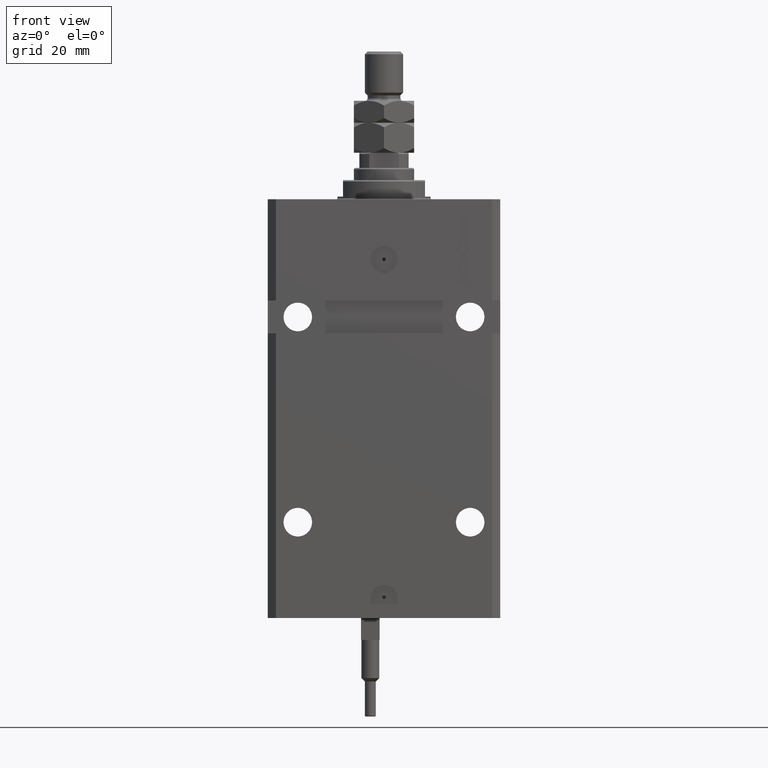
[diagram: clean part render]
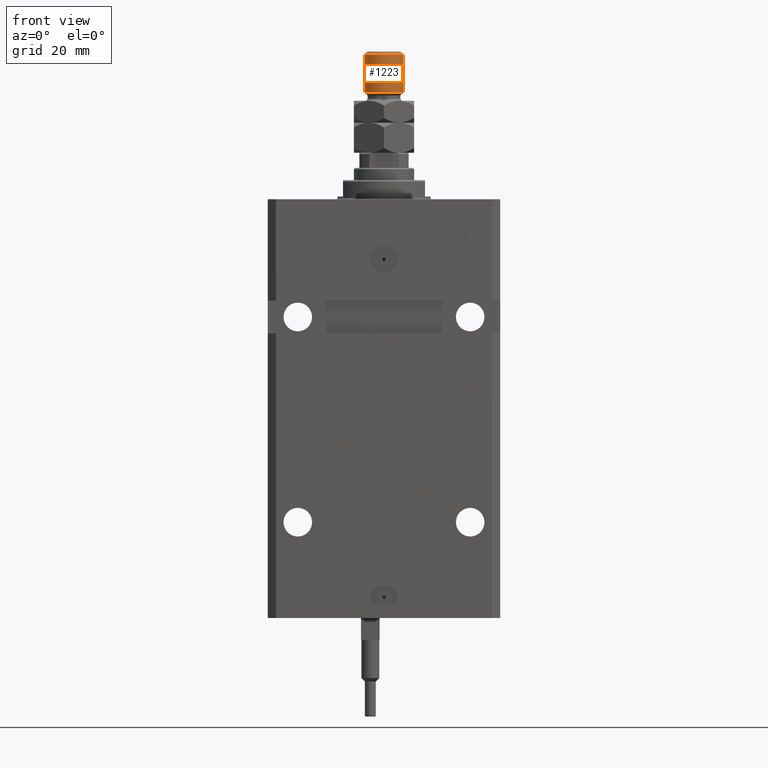
[diagram: same view with one face highlighted and labeled with its STEP entity id]
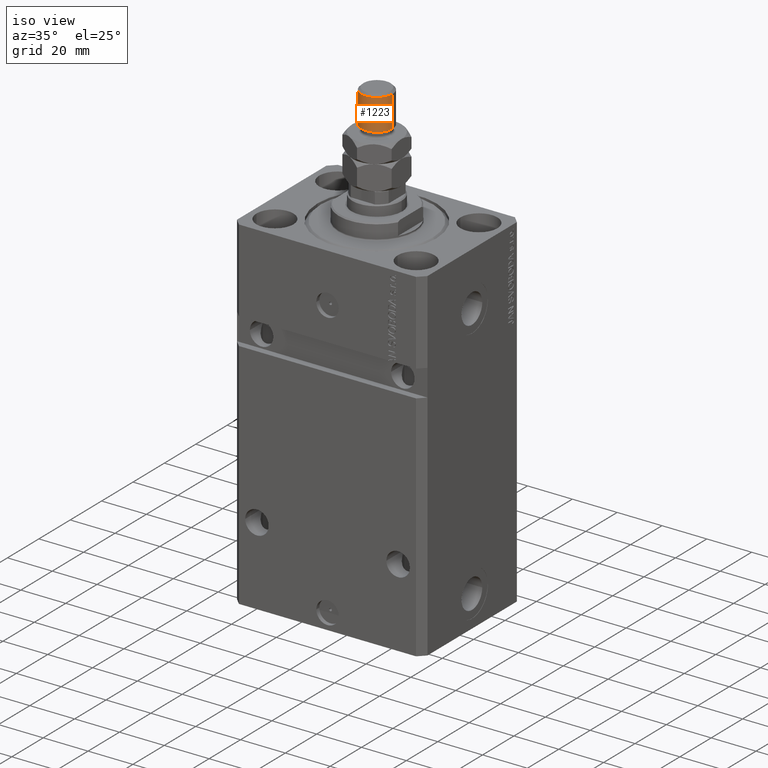
[diagram: same view with one face highlighted and labeled with its STEP entity id]
A machine part, front view. The second image highlights one B-rep face of the part: STEP entity #1223.
A second angle (iso view) of the same face is appended — the face is thin or edge-on in the first view.
In plain terms, the highlighted cylindrical surface (edge-blend (fillet) strip) has radius 7 mm, axis along (-0, -0, -1).
Its self-contained STEP definition (entity closure, byte-faithful):
#971 = CARTESIAN_POINT ( 'NONE',  ( -7.000000000000000000, 0.000000000000000000, 37.00000000000000000 ) ) ;
#1223 = ADVANCED_FACE ( 'NONE', ( #45105 ), #17760, .T. ) ;
#3260 = EDGE_CURVE ( 'NONE', #18743, #15442, #7896, .T. ) ;
#4356 = ORIENTED_EDGE ( 'NONE', *, *, #15148, .F. ) ;
#6348 = VERTEX_POINT ( 'NONE', #48163 ) ;
#7896 = CIRCLE ( 'NONE', #22736, 7.000000000000000000 ) ;
#8665 = VECTOR ( 'NONE', #40438, 1000.000000000000000 ) ;
#10716 = VECTOR ( 'NONE', #41335, 1000.000000000000000 ) ;
#13467 = ORIENTED_EDGE ( 'NONE', *, *, #30252, .T. ) ;
#14670 = DIRECTION ( 'NONE',  ( 1.000000000000000000, 0.000000000000000000, 0.000000000000000000 ) ) ;
#15148 = EDGE_CURVE ( 'NONE', #18743, #27756, #41086, .T. ) ;
#15442 = VERTEX_POINT ( 'NONE', #36645 ) ;
#15880 = EDGE_LOOP ( 'NONE', ( #4356, #33202, #13467, #32933 ) ) ;
#16520 = CARTESIAN_POINT ( 'NONE',  ( 7.000000000000000000, 8.572527594031473190E-16, 35.99999999999999289 ) ) ;
#17760 = CYLINDRICAL_SURFACE ( 'NONE', #18516, 7.000000000000000000 ) ;
#18516 = AXIS2_PLACEMENT_3D ( 'NONE', #25495, #21621, #37355 ) ;
#18743 = VERTEX_POINT ( 'NONE', #16520 ) ;
#18802 = CARTESIAN_POINT ( 'NONE',  ( 0.000000000000000000, 0.000000000000000000, 35.99999999999999289 ) ) ;
#19050 = DIRECTION ( 'NONE',  ( 0.000000000000000000, 0.000000000000000000, -1.000000000000000000 ) ) ;
#19117 = CIRCLE ( 'NONE', #50400, 7.000000000000000000 ) ;
#20295 = CARTESIAN_POINT ( 'NONE',  ( 7.000000000000000000, 8.572527594031473190E-16, 37.00000000000000000 ) ) ;
#20602 = LINE ( 'NONE', #971, #8665 ) ;
#21621 = DIRECTION ( 'NONE',  ( -0.000000000000000000, -0.000000000000000000, -1.000000000000000000 ) ) ;
#22736 = AXIS2_PLACEMENT_3D ( 'NONE', #18802, #19050, #14670 ) ;
#25495 = CARTESIAN_POINT ( 'NONE',  ( 0.000000000000000000, 0.000000000000000000, 37.00000000000000000 ) ) ;
#27756 = VERTEX_POINT ( 'NONE', #38981 ) ;
#28790 = DIRECTION ( 'NONE',  ( -0.000000000000000000, -0.000000000000000000, 1.000000000000000000 ) ) ;
#30252 = EDGE_CURVE ( 'NONE', #15442, #6348, #20602, .T. ) ;
#32933 = ORIENTED_EDGE ( 'NONE', *, *, #41550, .T. ) ;
#33202 = ORIENTED_EDGE ( 'NONE', *, *, #3260, .T. ) ;
#36645 = CARTESIAN_POINT ( 'NONE',  ( -7.000000000000000000, 0.000000000000000000, 35.99999999999999289 ) ) ;
#37355 = DIRECTION ( 'NONE',  ( -1.000000000000000000, 0.000000000000000000, 0.000000000000000000 ) ) ;
#38981 = CARTESIAN_POINT ( 'NONE',  ( 7.000000000000000000, 8.572527594031473190E-16, 22.00000000000000355 ) ) ;
#40438 = DIRECTION ( 'NONE',  ( -0.000000000000000000, -0.000000000000000000, -1.000000000000000000 ) ) ;
#40888 = CARTESIAN_POINT ( 'NONE',  ( 0.000000000000000000, 0.000000000000000000, 22.00000000000000355 ) ) ;
#41086 = LINE ( 'NONE', #20295, #10716 ) ;
#41335 = DIRECTION ( 'NONE',  ( -0.000000000000000000, -0.000000000000000000, -1.000000000000000000 ) ) ;
#41550 = EDGE_CURVE ( 'NONE', #6348, #27756, #19117, .T. ) ;
#44515 = DIRECTION ( 'NONE',  ( 1.000000000000000000, 0.000000000000000000, 0.000000000000000000 ) ) ;
#45105 = FACE_OUTER_BOUND ( 'NONE', #15880, .T. ) ;
#48163 = CARTESIAN_POINT ( 'NONE',  ( -7.000000000000000000, 0.000000000000000000, 22.00000000000000355 ) ) ;
#50400 = AXIS2_PLACEMENT_3D ( 'NONE', #40888, #28790, #44515 ) ;